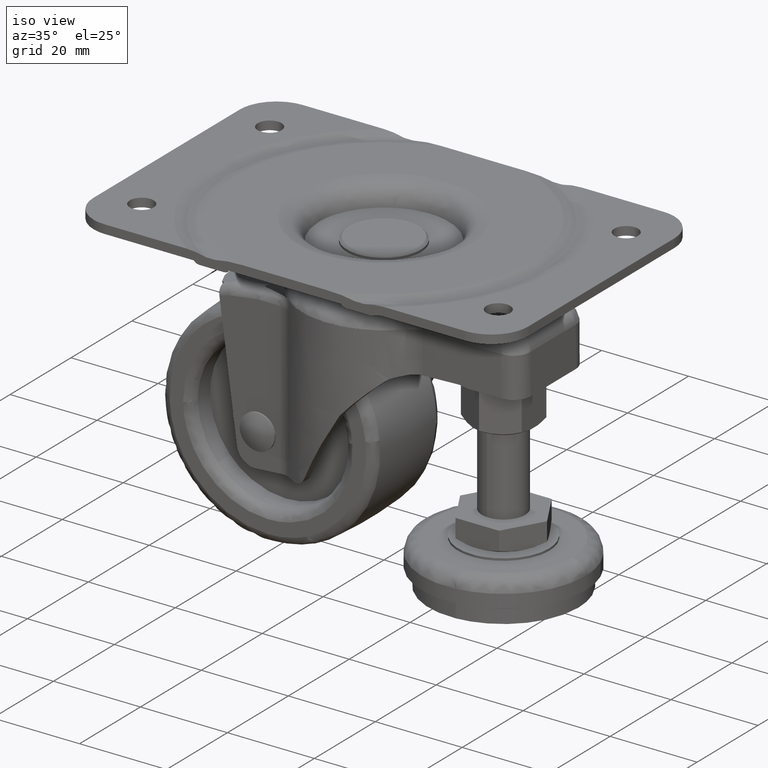
[diagram: clean part render]
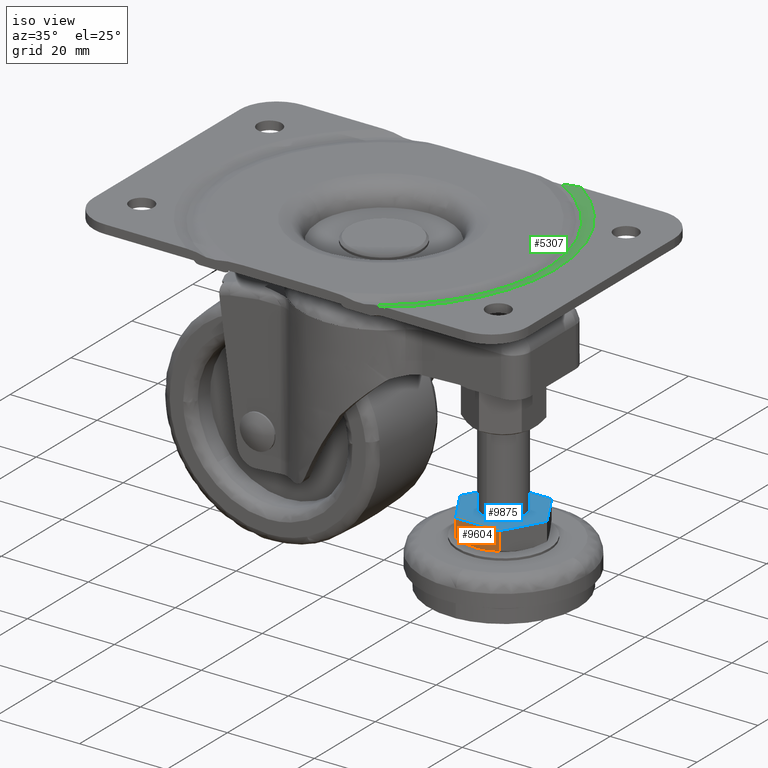
[diagram: same view with three faces highlighted in distinct colors, each labeled with its STEP entity id]
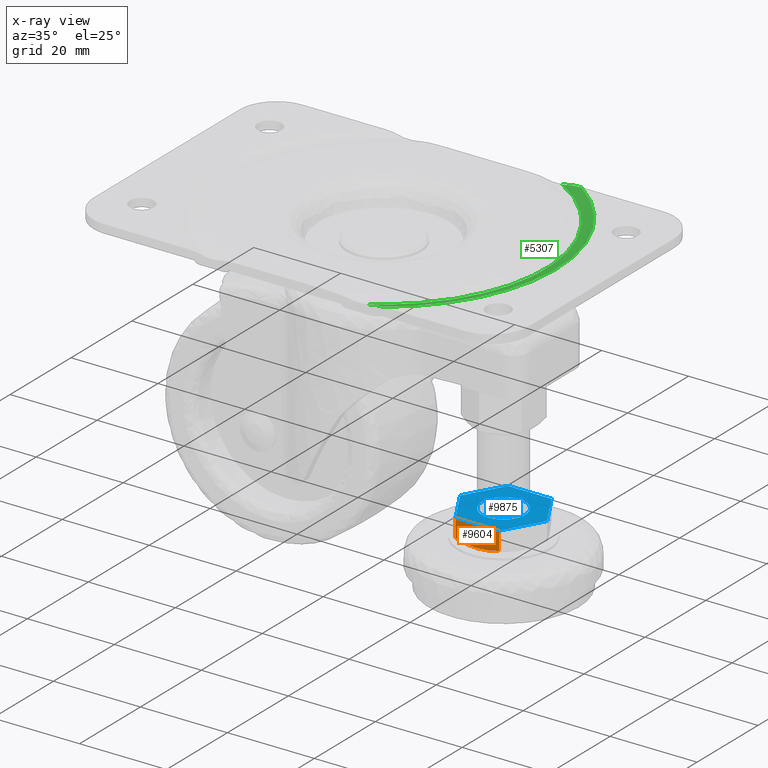
[diagram: x-ray of the same camera — body ghosted, the three highlighted faces saturated]
A machine part, iso view with three faces highlighted in distinct colors.
The next image is the same camera in x-ray (body ghosted, the three faces saturated) — at least one of them is partly hidden behind the body in this view.
Their STEP definitions:

[orange] entity #9604 — the highlighted face is a freeform B-spline surface patch.
#9542=CARTESIAN_POINT('',(22.000522922383361,-8.660254037844400,-52.750250009690959));
#9543=CARTESIAN_POINT('',(22.000522922383361,-8.660254037844400,-58.249750124419478));
#9544=CARTESIAN_POINT('',(32.999522955162952,-8.660254037844400,-52.750250009690959));
#9545=CARTESIAN_POINT('',(32.999522955162952,-8.660254037844400,-58.249750124419478));
#9546=B_SPLINE_SURFACE_WITH_KNOTS('',1,1,((#9542,#9544),(#9543,#9545)),.UNSPECIFIED.,.F.,.F.,.U.,(2,2),(2,2),(0.0,5.499500114728519),(0.0,10.999000032779580),.UNSPECIFIED.);
#9547=CARTESIAN_POINT('',(32.500022000000001,-8.660254037844400,-57.226496442078300));
#9548=VERTEX_POINT('',#9547);
#9549=CARTESIAN_POINT('',(27.500019000000101,-8.660254037844400,-58.0));
#9550=VERTEX_POINT('',#9549);
#9551=CARTESIAN_POINT('',(32.500021999999973,-8.660254037844400,-57.226496442078179));
#9552=CARTESIAN_POINT('',(31.691696719682270,-8.660254037844400,-57.459839956174790));
#9553=CARTESIAN_POINT('',(30.873002154692500,-8.660254037844398,-57.654096045180829));
#9554=CARTESIAN_POINT('',(29.621578752364190,-8.660254037844400,-57.857342491052400));
#9555=CARTESIAN_POINT('',(29.200520175406918,-8.660254037844402,-57.910324351947907));
#9556=CARTESIAN_POINT('',(28.562090654506800,-8.660254037844398,-57.964007254797473));
#9557=CARTESIAN_POINT('',(28.349408871333200,-8.660254037844398,-57.977494651200047));
#9558=CARTESIAN_POINT('',(27.925023875976368,-8.660254037844398,-57.995473851027349));
#9559=CARTESIAN_POINT('',(27.713204489246522,-8.660254037844402,-57.999975395399552));
#9560=CARTESIAN_POINT('',(27.501177862500249,-8.660254037844402,-57.999999966426103));
#9561=CARTESIAN_POINT('',(27.500598430067470,-8.660254037844402,-57.999999999834671));
#9562=CARTESIAN_POINT('',(27.500019000000101,-8.660254037844400,-58.0));
#9563=B_SPLINE_CURVE_WITH_KNOTS('',3,(#9551,#9552,#9553,#9554,#9555,#9556,#9557,#9558,#9559,#9560,#9561,#9562),.UNSPECIFIED.,.F.,.U.,(4,2,2,2,2,4),(0.499828729329059,0.749828729329059,0.874828729329059,0.937328729329058,0.999828729329058,1.0),.UNSPECIFIED.);
#9564=EDGE_CURVE('',#9548,#9550,#9563,.T.);
#9565=ORIENTED_EDGE('',*,*,#9564,.F.);
#9566=CARTESIAN_POINT('',(32.500022000000001,-8.660254037844400,-53.0));
#9567=VERTEX_POINT('',#9566);
#9568=CARTESIAN_POINT('',(32.500022000000001,-8.660254037844400,-57.226496442078300));
#9569=CARTESIAN_POINT('',(32.500022000000001,-8.660254037844400,-53.0));
#9570=QUASI_UNIFORM_CURVE('',1,(#9568,#9569),.UNSPECIFIED.,.F.,.U.);
#9571=EDGE_CURVE('',#9548,#9567,#9570,.T.);
#9572=ORIENTED_EDGE('',*,*,#9571,.T.);
#9573=CARTESIAN_POINT('',(22.500022000000001,-8.660254037844400,-53.0));
#9574=VERTEX_POINT('',#9573);
#9575=CARTESIAN_POINT('',(22.500022000000001,-8.660254037844400,-53.0));
#9576=CARTESIAN_POINT('',(32.500022000000001,-8.660254037844400,-53.0));
#9577=QUASI_UNIFORM_CURVE('',1,(#9575,#9576),.UNSPECIFIED.,.F.,.U.);
#9578=EDGE_CURVE('',#9574,#9567,#9577,.T.);
#9579=ORIENTED_EDGE('',*,*,#9578,.F.);
#9580=CARTESIAN_POINT('',(22.500022000000001,-8.660254037844400,-57.226498174129013));
#9581=VERTEX_POINT('',#9580);
#9582=CARTESIAN_POINT('',(22.500022000000001,-8.660254037844400,-57.226498174129013));
#9583=CARTESIAN_POINT('',(22.500022000000001,-8.660254037844400,-53.0));
#9584=QUASI_UNIFORM_CURVE('',1,(#9582,#9583),.UNSPECIFIED.,.F.,.U.);
#9585=EDGE_CURVE('',#9581,#9574,#9584,.T.);
#9586=ORIENTED_EDGE('',*,*,#9585,.F.);
#9587=CARTESIAN_POINT('',(27.500019000000101,-8.660254037844400,-58.0));
#9588=CARTESIAN_POINT('',(27.077708140965591,-8.660254037844400,-57.999999759539470));
#9589=CARTESIAN_POINT('',(26.656887190576221,-8.660254037844402,-57.982077791876733));
#9590=CARTESIAN_POINT('',(25.817498058666288,-8.660254037844398,-57.912166067962957));
#9591=CARTESIAN_POINT('',(25.398931618123640,-8.660254037844400,-57.860155369937132));
#9592=CARTESIAN_POINT('',(24.564336591073118,-8.660254037844402,-57.725606781080216));
#9593=CARTESIAN_POINT('',(24.148305571671319,-8.660254037844403,-57.643098154903683));
#9594=CARTESIAN_POINT('',(23.525885454304721,-8.660254037844400,-57.499771527590589));
#9595=CARTESIAN_POINT('',(23.319054766074299,-8.660254037844398,-57.448818605407723));
#9596=CARTESIAN_POINT('',(22.907998342542029,-8.660254037844398,-57.341583365753372));
#9597=CARTESIAN_POINT('',(22.703536589530039,-8.660254037844402,-57.285247749216211));
#9598=CARTESIAN_POINT('',(22.500022000000019,-8.660254037844400,-57.226498174128963));
#9599=B_SPLINE_CURVE_WITH_KNOTS('',3,(#9587,#9588,#9589,#9590,#9591,#9592,#9593,#9594,#9595,#9596,#9597,#9598),.UNSPECIFIED.,.F.,.U.,(4,2,2,2,2,4),(0.0,0.124828729287296,0.249828729287296,0.374828729287296,0.437328729287296,0.499828729287297),.UNSPECIFIED.);
#9600=EDGE_CURVE('',#9550,#9581,#9599,.T.);
#9601=ORIENTED_EDGE('',*,*,#9600,.F.);
#9602=EDGE_LOOP('',(#9565,#9572,#9579,#9586,#9601));
#9603=FACE_OUTER_BOUND('',#9602,.T.);
#9604=ADVANCED_FACE('',(#9603),#9546,.T.);

[blue] entity #9875 — the highlighted face is a freeform B-spline surface patch.
#7923=CARTESIAN_POINT('',(22.500022000000001,0.0,-53.0));
#7924=VERTEX_POINT('',#7923);
#7925=CARTESIAN_POINT('',(27.107726521316831,-4.984586668662180,-53.0));
#7926=VERTEX_POINT('',#7925);
#7927=CARTESIAN_POINT('',(22.500022000000001,0.0,-53.0));
#7928=CARTESIAN_POINT('',(22.500022000000001,-4.621952458209282,-53.0));
#7929=CARTESIAN_POINT('',(27.107726521316831,-4.984586668662180,-53.0));
#7937=(BOUNDED_CURVE()B_SPLINE_CURVE(2,(#7927,#7928,#7929),.UNSPECIFIED.,.F.,.U.)B_SPLINE_CURVE_WITH_KNOTS((3,3),(0.500000000000000,0.736331300629744),.UNSPECIFIED.)CURVE()GEOMETRIC_REPRESENTATION_ITEM()RATIONAL_B_SPLINE_CURVE((1.0,0.723120658608738,0.969723356165507))REPRESENTATION_ITEM(''));
#7938=EDGE_CURVE('',#7924,#7926,#7937,.T.);
#7979=CARTESIAN_POINT('',(27.892317478683172,4.984586668662180,-53.0));
#7980=VERTEX_POINT('',#7979);
#7986=CARTESIAN_POINT('',(27.892317478683164,4.984586668662180,-53.0));
#7987=CARTESIAN_POINT('',(27.696472535082496,4.999999999999999,-53.0));
#7988=CARTESIAN_POINT('',(27.500022000000001,5.0,-53.0));
#7989=CARTESIAN_POINT('',(22.500022000000005,5.000000000000001,-53.0));
#7990=CARTESIAN_POINT('',(22.500022000000001,0.0,-53.0));
#7998=(BOUNDED_CURVE()B_SPLINE_CURVE(2,(#7986,#7987,#7988,#7989,#7990),.UNSPECIFIED.,.F.,.U.)B_SPLINE_CURVE_WITH_KNOTS((3,2,3),(0.236331300629744,0.250000000000000,0.500000000000000),.UNSPECIFIED.)CURVE()GEOMETRIC_REPRESENTATION_ITEM()RATIONAL_B_SPLINE_CURVE((0.969723356165507,0.983986122577809,1.0,0.707106781186548,1.0))REPRESENTATION_ITEM(''));
#7999=EDGE_CURVE('',#7980,#7924,#7998,.T.);
#8022=CARTESIAN_POINT('',(32.500021999999987,0.0,-53.0));
#8023=VERTEX_POINT('',#8022);
#8024=CARTESIAN_POINT('',(27.107726521316831,-4.984586668662180,-53.0));
#8025=CARTESIAN_POINT('',(27.303571464917500,-4.999999999999999,-53.0));
#8026=CARTESIAN_POINT('',(27.500022000000001,-5.0,-53.0));
#8027=CARTESIAN_POINT('',(32.500021999999994,-5.000000000000001,-53.0));
#8028=CARTESIAN_POINT('',(32.500021999999987,0.0,-53.0));
#8036=(BOUNDED_CURVE()B_SPLINE_CURVE(2,(#8024,#8025,#8026,#8027,#8028),.UNSPECIFIED.,.F.,.U.)B_SPLINE_CURVE_WITH_KNOTS((3,2,3),(0.736331300629744,0.750000000000000,1.0),.UNSPECIFIED.)CURVE()GEOMETRIC_REPRESENTATION_ITEM()RATIONAL_B_SPLINE_CURVE((0.969723356165507,0.983986122577809,1.0,0.707106781186548,1.0))REPRESENTATION_ITEM(''));
#8037=EDGE_CURVE('',#7926,#8023,#8036,.T.);
#8039=CARTESIAN_POINT('',(32.500021999999987,0.0,-53.0));
#8040=CARTESIAN_POINT('',(32.500022000000001,4.621952458209282,-53.000000000000007));
#8041=CARTESIAN_POINT('',(27.892317478683168,4.984586668662180,-53.0));
#8049=(BOUNDED_CURVE()B_SPLINE_CURVE(2,(#8039,#8040,#8041),.UNSPECIFIED.,.F.,.U.)B_SPLINE_CURVE_WITH_KNOTS((3,3),(0.0,0.236331300629744),.UNSPECIFIED.)CURVE()GEOMETRIC_REPRESENTATION_ITEM()RATIONAL_B_SPLINE_CURVE((1.0,0.723120658608738,0.969723356165507))REPRESENTATION_ITEM(''));
#8050=EDGE_CURVE('',#8023,#7980,#8049,.T.);
#9566=CARTESIAN_POINT('',(32.500022000000001,-8.660254037844400,-53.0));
#9567=VERTEX_POINT('',#9566);
#9573=CARTESIAN_POINT('',(22.500022000000001,-8.660254037844400,-53.0));
#9574=VERTEX_POINT('',#9573);
#9575=CARTESIAN_POINT('',(22.500022000000001,-8.660254037844400,-53.0));
#9576=CARTESIAN_POINT('',(32.500022000000001,-8.660254037844400,-53.0));
#9577=QUASI_UNIFORM_CURVE('',1,(#9575,#9576),.UNSPECIFIED.,.F.,.U.);
#9578=EDGE_CURVE('',#9574,#9567,#9577,.T.);
#9627=CARTESIAN_POINT('',(37.500022000000001,0.0,-53.0));
#9628=VERTEX_POINT('',#9627);
#9634=CARTESIAN_POINT('',(32.500022000000001,-8.660254037844400,-53.0));
#9635=CARTESIAN_POINT('',(37.500022000000001,0.0,-53.0));
#9636=QUASI_UNIFORM_CURVE('',1,(#9634,#9635),.UNSPECIFIED.,.F.,.U.);
#9637=EDGE_CURVE('',#9567,#9628,#9636,.T.);
#9678=CARTESIAN_POINT('',(32.500022000000001,8.660254037844400,-53.0));
#9679=VERTEX_POINT('',#9678);
#9685=CARTESIAN_POINT('',(37.500022000000001,0.0,-53.0));
#9686=CARTESIAN_POINT('',(32.500022000000001,8.660254037844400,-53.0));
#9687=QUASI_UNIFORM_CURVE('',1,(#9685,#9686),.UNSPECIFIED.,.F.,.U.);
#9688=EDGE_CURVE('',#9628,#9679,#9687,.T.);
#9731=CARTESIAN_POINT('',(22.500022000000001,8.660254037844400,-53.0));
#9732=VERTEX_POINT('',#9731);
#9738=CARTESIAN_POINT('',(32.500022000000001,8.660254037844400,-53.0));
#9739=CARTESIAN_POINT('',(22.500022000000001,8.660254037844400,-53.0));
#9740=QUASI_UNIFORM_CURVE('',1,(#9738,#9739),.UNSPECIFIED.,.F.,.U.);
#9741=EDGE_CURVE('',#9679,#9732,#9740,.T.);
#9784=CARTESIAN_POINT('',(17.500022000000001,0.0,-53.0));
#9785=VERTEX_POINT('',#9784);
#9791=CARTESIAN_POINT('',(22.500022000000001,8.660254037844400,-53.0));
#9792=CARTESIAN_POINT('',(17.500022000000001,0.0,-53.0));
#9793=QUASI_UNIFORM_CURVE('',1,(#9791,#9792),.UNSPECIFIED.,.F.,.U.);
#9794=EDGE_CURVE('',#9732,#9785,#9793,.T.);
#9834=CARTESIAN_POINT('',(17.500022000000001,0.0,-53.0));
#9835=CARTESIAN_POINT('',(22.500022000000001,-8.660254037844400,-53.0));
#9836=QUASI_UNIFORM_CURVE('',1,(#9834,#9835),.UNSPECIFIED.,.F.,.U.);
#9837=EDGE_CURVE('',#9785,#9574,#9836,.T.);
#9856=CARTESIAN_POINT('',(16.501022977492340,-9.525413870432162,-53.0));
#9857=CARTESIAN_POINT('',(38.499022453019137,-9.525413870432162,-53.0));
#9858=CARTESIAN_POINT('',(16.501022977492340,9.525413870432161,-53.0));
#9859=CARTESIAN_POINT('',(38.499022453019137,9.525413870432161,-53.0));
#9860=B_SPLINE_SURFACE_WITH_KNOTS('',1,1,((#9856,#9858),(#9857,#9859)),.UNSPECIFIED.,.F.,.F.,.U.,(2,2),(2,2),(0.0,21.997999475526811),(0.0,19.050827740864321),.UNSPECIFIED.);
#9861=ORIENTED_EDGE('',*,*,#9578,.T.);
#9862=ORIENTED_EDGE('',*,*,#9637,.T.);
#9863=ORIENTED_EDGE('',*,*,#9688,.T.);
#9864=ORIENTED_EDGE('',*,*,#9741,.T.);
#9865=ORIENTED_EDGE('',*,*,#9794,.T.);
#9866=ORIENTED_EDGE('',*,*,#9837,.T.);
#9867=EDGE_LOOP('',(#9861,#9862,#9863,#9864,#9865,#9866));
#9868=FACE_OUTER_BOUND('',#9867,.T.);
#9869=ORIENTED_EDGE('',*,*,#8050,.F.);
#9870=ORIENTED_EDGE('',*,*,#8037,.F.);
#9871=ORIENTED_EDGE('',*,*,#7938,.F.);
#9872=ORIENTED_EDGE('',*,*,#7999,.F.);
#9873=EDGE_LOOP('',(#9869,#9870,#9871,#9872));
#9874=FACE_BOUND('',#9873,.T.);
#9875=ADVANCED_FACE('',(#9868,#9874),#9860,.T.);

[green] entity #5307 — the highlighted face is a freeform B-spline surface patch.
#5218=CARTESIAN_POINT('',(14.732543176906210,34.096533026652722,-0.659311112609179));
#5219=CARTESIAN_POINT('',(37.143255012142177,24.413238262351300,-0.659311112609179));
#5220=CARTESIAN_POINT('',(37.143255012142198,2.274293E-015,-0.659311112609179));
#5221=CARTESIAN_POINT('',(37.143255012142198,-24.413236323595736,-0.659311112609179));
#5222=CARTESIAN_POINT('',(14.732545662545794,-34.096531952649222,-0.659311112609179));
#5223=CARTESIAN_POINT('',(15.212558539542588,35.207465434513423,0.032573012996421));
#5224=CARTESIAN_POINT('',(38.353455641460350,25.208669796263276,0.032573012996421));
#5225=CARTESIAN_POINT('',(38.353455641460364,2.348394E-015,0.032573012996421));
#5226=CARTESIAN_POINT('',(38.353455641460371,-25.208667794339224,0.032573012996421));
#5227=CARTESIAN_POINT('',(15.212561106169213,-35.207464325516760,0.032573012996421));
#5228=CARTESIAN_POINT('',(15.765318739969524,36.486756199411346,-0.001493189286398));
#5229=CARTESIAN_POINT('',(39.747058418556165,26.124646509375587,-0.001493189286398));
#5230=CARTESIAN_POINT('',(39.747058418556179,2.433725E-015,-0.001493189286397));
#5231=CARTESIAN_POINT('',(39.747058418556172,-26.124644434710063,-0.001493189286398));
#5232=CARTESIAN_POINT('',(15.765321399856536,-36.486755050118425,-0.001493189286397));
#5240=(BOUNDED_SURFACE()B_SPLINE_SURFACE(2,2,((#5218,#5223,#5228),(#5219,#5224,#5229),(#5220,#5225,#5230),(#5221,#5226,#5231),(#5222,#5227,#5232)),.UNSPECIFIED.,.F.,.F.,.U.)B_SPLINE_SURFACE_WITH_KNOTS((3,2,3),(3,3),(0.0,47.568245141497492,95.136487175654466),(0.0,2.735867140761760),.UNSPECIFIED.)GEOMETRIC_REPRESENTATION_ITEM()RATIONAL_B_SPLINE_SURFACE(((0.917380386802785,0.883386325583533,0.916774442849216),(0.778807715122471,0.749948544459178,0.778293300564715),(0.946795539068467,0.911711482356312,0.946170165951255),(0.778807726096081,0.749948555026154,0.778293311531076),(0.917380368698588,0.883386308150197,0.916774424756977)))REPRESENTATION_ITEM('')SURFACE());
#5241=CARTESIAN_POINT('',(18.201997788704450,32.500000000000000,-0.600000000000000));
#5242=VERTEX_POINT('',#5241);
#5243=CARTESIAN_POINT('',(22.668931047715450,32.500000000000000,0.0));
#5244=VERTEX_POINT('',#5243);
#5245=CARTESIAN_POINT('',(18.201997788704450,32.500000000000000,-0.600000000000000));
#5246=CARTESIAN_POINT('',(18.567992535349472,32.500000000000000,-0.503471741178349));
#5247=CARTESIAN_POINT('',(18.935519698593691,32.500000000000000,-0.418352153479588));
#5248=CARTESIAN_POINT('',(19.673605569096811,32.500000000000000,-0.270682486057439));
#5249=CARTESIAN_POINT('',(20.044165068825869,32.500000000000000,-0.208138306186313));
#5250=CARTESIAN_POINT('',(20.788423336767561,32.500000000000000,-0.106421451107761));
#5251=CARTESIAN_POINT('',(21.162121793816340,32.500000000000000,-0.067246459320146));
#5252=CARTESIAN_POINT('',(21.912896157535339,32.500000000000000,-0.014041212485856));
#5253=CARTESIAN_POINT('',(22.289970592398578,32.500000000000000,-3.515187E-016));
#5254=CARTESIAN_POINT('',(22.668931047715450,32.500000000000000,-3.524696E-016));
#5255=B_SPLINE_CURVE_WITH_KNOTS('',3,(#5245,#5246,#5247,#5248,#5249,#5250,#5251,#5252,#5253,#5254),.UNSPECIFIED.,.F.,.U.,(4,2,2,2,4),(0.0,0.250000000000000,0.500000000000000,0.750000000000000,1.0),.UNSPECIFIED.);
#5256=EDGE_CURVE('',#5242,#5244,#5255,.T.);
#5257=ORIENTED_EDGE('',*,*,#5256,.F.);
#5258=CARTESIAN_POINT('',(18.201997788704450,-32.500000000000000,-0.600000000000000));
#5259=VERTEX_POINT('',#5258);
#5260=CARTESIAN_POINT('',(18.201997788704450,32.499999999999993,-0.600000000000000));
#5261=CARTESIAN_POINT('',(37.250002999999907,21.831946192762132,-0.600000000000000));
#5262=CARTESIAN_POINT('',(37.250002999999900,0.0,-0.600000000000000));
#5263=CARTESIAN_POINT('',(37.250002999999907,-21.831946192762121,-0.600000000000000));
#5264=CARTESIAN_POINT('',(18.201997788704460,-32.499999999999993,-0.600000000000000));
#5272=(BOUNDED_CURVE()B_SPLINE_CURVE(2,(#5260,#5261,#5262,#5263,#5264),.UNSPECIFIED.,.F.,.U.)B_SPLINE_CURVE_WITH_KNOTS((3,2,3),(0.0,0.500000000000000,1.0),.UNSPECIFIED.)CURVE()GEOMETRIC_REPRESENTATION_ITEM()RATIONAL_B_SPLINE_CURVE((1.0,0.862741037793056,1.0,0.862741037793056,1.0))REPRESENTATION_ITEM(''));
#5273=EDGE_CURVE('',#5242,#5259,#5272,.T.);
#5274=ORIENTED_EDGE('',*,*,#5273,.T.);
#5275=CARTESIAN_POINT('',(22.668931047715450,-32.500000000000000,0.0));
#5276=VERTEX_POINT('',#5275);
#5277=CARTESIAN_POINT('',(22.668931047715450,-32.500000000000000,0.0));
#5278=CARTESIAN_POINT('',(22.289970592398578,-32.500000000000000,-1.905824E-018));
#5279=CARTESIAN_POINT('',(21.912896157535350,-32.499999999999993,-0.014041212485856));
#5280=CARTESIAN_POINT('',(21.162121793816350,-32.499999999999979,-0.067246459320147));
#5281=CARTESIAN_POINT('',(20.788423336767561,-32.499999999999993,-0.106421451107709));
#5282=CARTESIAN_POINT('',(20.044165068825869,-32.499999999999993,-0.208138306186260));
#5283=CARTESIAN_POINT('',(19.673605569096811,-32.499999999999993,-0.270682486057444));
#5284=CARTESIAN_POINT('',(18.935519698593701,-32.499999999999993,-0.418352153479593));
#5285=CARTESIAN_POINT('',(18.567992535349461,-32.500000000000000,-0.503471741178305));
#5286=CARTESIAN_POINT('',(18.201997788704450,-32.500000000000000,-0.599999999999955));
#5287=B_SPLINE_CURVE_WITH_KNOTS('',3,(#5277,#5278,#5279,#5280,#5281,#5282,#5283,#5284,#5285,#5286),.UNSPECIFIED.,.F.,.U.,(4,2,2,2,4),(0.0,0.250000000000000,0.500000000000000,0.750000000000000,1.0),.UNSPECIFIED.);
#5288=EDGE_CURVE('',#5276,#5259,#5287,.T.);
#5289=ORIENTED_EDGE('',*,*,#5288,.F.);
#5290=CARTESIAN_POINT('',(22.668931047715439,32.500000000000007,0.0));
#5291=CARTESIAN_POINT('',(39.624871417407491,20.673137135700813,0.0));
#5292=CARTESIAN_POINT('',(39.624871417407498,0.0,0.0));
#5293=CARTESIAN_POINT('',(39.624871417407491,-20.673137135700792,0.0));
#5294=CARTESIAN_POINT('',(22.668931047715461,-32.499999999999993,0.0));
#5302=(BOUNDED_CURVE()B_SPLINE_CURVE(2,(#5290,#5291,#5292,#5293,#5294),.UNSPECIFIED.,.F.,.U.)B_SPLINE_CURVE_WITH_KNOTS((3,2,3),(0.0,0.500000000000000,1.0),.UNSPECIFIED.)CURVE()GEOMETRIC_REPRESENTATION_ITEM()RATIONAL_B_SPLINE_CURVE((1.0,0.886591350164854,1.0,0.886591350164854,1.0))REPRESENTATION_ITEM(''));
#5303=EDGE_CURVE('',#5244,#5276,#5302,.T.);
#5304=ORIENTED_EDGE('',*,*,#5303,.F.);
#5305=EDGE_LOOP('',(#5257,#5274,#5289,#5304));
#5306=FACE_OUTER_BOUND('',#5305,.T.);
#5307=ADVANCED_FACE('',(#5306),#5240,.T.);